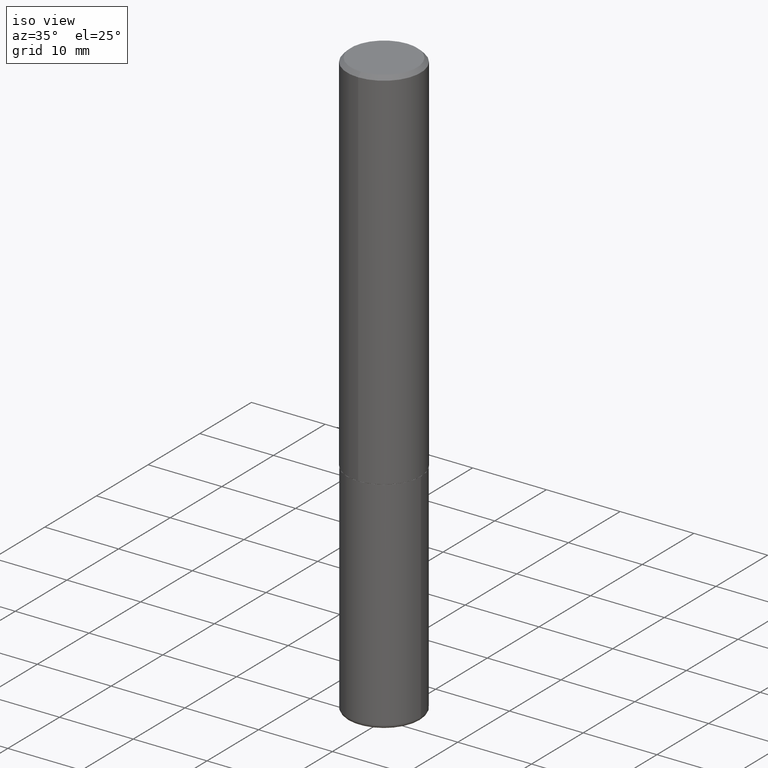
[diagram: clean part render]
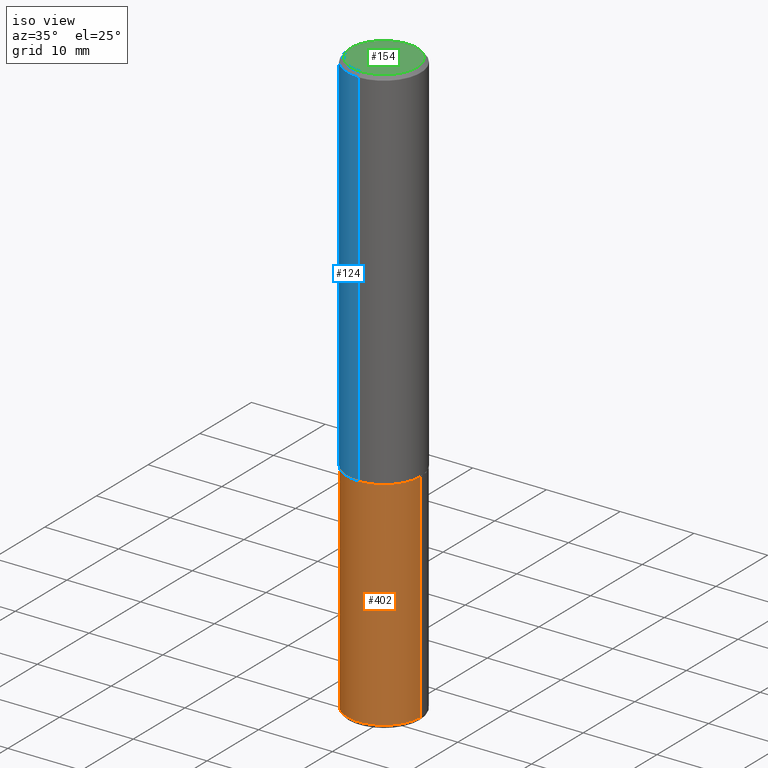
[diagram: same view with three faces highlighted in distinct colors, each labeled with its STEP entity id]
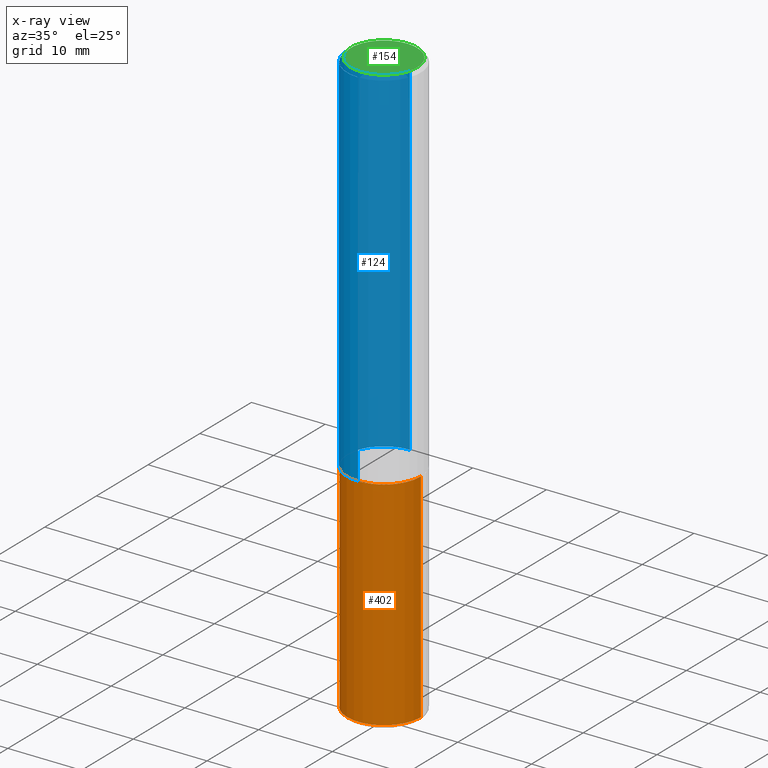
[diagram: x-ray of the same camera — body ghosted, the three highlighted faces saturated]
A machine part, iso view with three faces highlighted in distinct colors.
The next image is the same camera in x-ray (body ghosted, the three faces saturated) — at least one of them is partly hidden behind the body in this view.
Their STEP definitions:

[orange] entity #402 — the highlighted cylindrical surface (partial cylindrical patch) has radius 5 mm, axis along (-0, 0, 1).
#5 = CARTESIAN_POINT ( 'NONE',  ( 0.1968499999999999417, -1.230258364554770273E-14, -3.129900000000000571 ) ) ;
#29 = LINE ( 'NONE', #346, #117 ) ;
#32 = DIRECTION ( 'NONE',  ( 1.000000000000000000, -6.982962677686269866E-15, 0.000000000000000000 ) ) ;
#35 = LINE ( 'NONE', #417, #264 ) ;
#38 = CIRCLE ( 'NONE', #385, 0.1968500000000000250 ) ;
#53 = VERTEX_POINT ( 'NONE', #181 ) ;
#59 = DIRECTION ( 'NONE',  ( 1.000000000000000000, -6.982962677686267499E-15, 0.000000000000000000 ) ) ;
#63 = CARTESIAN_POINT ( 'NONE',  ( -0.1968500000000000250, -7.501780853635190206E-15, -1.968499999999999694 ) ) ;
#64 = CARTESIAN_POINT ( 'NONE',  ( 4.813905344975440714E-29, -6.872981015512730918E-15, -1.968499999999999694 ) ) ;
#72 = CARTESIAN_POINT ( 'NONE',  ( 0.000000000000000000, 0.000000000000000000, 0.000000000000000000 ) ) ;
#92 = ORIENTED_EDGE ( 'NONE', *, *, #227, .F. ) ;
#101 = EDGE_CURVE ( 'NONE', #334, #273, #29, .T. ) ;
#106 = EDGE_CURVE ( 'NONE', #179, #273, #38, .T. ) ;
#108 = ORIENTED_EDGE ( 'NONE', *, *, #101, .T. ) ;
#117 = VECTOR ( 'NONE', #160, 39.37007874015748143 ) ;
#133 = CARTESIAN_POINT ( 'NONE',  ( 0.1968500000000000250, -8.247577218615273316E-15, -1.968499999999999694 ) ) ;
#136 = DIRECTION ( 'NONE',  ( -2.445468806185136597E-29, 3.491481338843145583E-15, 1.000000000000000000 ) ) ;
#139 = CYLINDRICAL_SURFACE ( 'NONE', #281, 0.1968499999999999694 ) ;
#140 = ORIENTED_EDGE ( 'NONE', *, *, #106, .F. ) ;
#155 = CIRCLE ( 'NONE', #413, 0.1968499999999999694 ) ;
#160 = DIRECTION ( 'NONE',  ( -2.445468806185136877E-29, 3.491481338843145188E-15, 1.000000000000000000 ) ) ;
#163 = DIRECTION ( 'NONE',  ( -2.445468806185136877E-29, 3.491481338843145188E-15, 1.000000000000000000 ) ) ;
#174 = ORIENTED_EDGE ( 'NONE', *, *, #207, .T. ) ;
#179 = VERTEX_POINT ( 'NONE', #63 ) ;
#181 = CARTESIAN_POINT ( 'NONE',  ( -0.1968499999999999417, -9.529284067101404126E-15, -3.129900000000000571 ) ) ;
#207 = EDGE_CURVE ( 'NONE', #53, #334, #155, .T. ) ;
#227 = EDGE_CURVE ( 'NONE', #53, #179, #35, .T. ) ;
#237 = DIRECTION ( 'NONE',  ( -2.445468806185136597E-29, 3.491481338843145583E-15, 1.000000000000000000 ) ) ;
#264 = VECTOR ( 'NONE', #163, 39.37007874015748143 ) ;
#268 = DIRECTION ( 'NONE',  ( 1.000000000000000000, -6.982962677686266711E-15, 4.876176775795935793E-29 ) ) ;
#273 = VERTEX_POINT ( 'NONE', #133 ) ;
#281 = AXIS2_PLACEMENT_3D ( 'NONE', #72, #237, #268 ) ;
#288 = DIRECTION ( 'NONE',  ( -2.445468806185136597E-29, 3.491481338843145583E-15, 1.000000000000000000 ) ) ;
#298 = FACE_OUTER_BOUND ( 'NONE', #401, .T. ) ;
#321 = CARTESIAN_POINT ( 'NONE',  ( 7.654072816478859974E-29, -1.092798744244516270E-14, -3.129900000000000571 ) ) ;
#334 = VERTEX_POINT ( 'NONE', #5 ) ;
#346 = CARTESIAN_POINT ( 'NONE',  ( 0.1968499999999999694, -1.374596203102541411E-15, 9.598753983154298056E-30 ) ) ;
#385 = AXIS2_PLACEMENT_3D ( 'NONE', #64, #288, #59 ) ;
#401 = EDGE_LOOP ( 'NONE', ( #92, #174, #108, #140 ) ) ;
#402 = ADVANCED_FACE ( 'NONE', ( #298 ), #139, .T. ) ;
#413 = AXIS2_PLACEMENT_3D ( 'NONE', #321, #136, #32 ) ;
#417 = CARTESIAN_POINT ( 'NONE',  ( -0.1968499999999999694, 1.398703375343756999E-15, -9.682923725166782276E-30 ) ) ;

[blue] entity #124 — the highlighted cylindrical surface (partial cylindrical patch) has radius 5 mm, axis along (-0, 0, 1).
#26 = VERTEX_POINT ( 'NONE', #95 ) ;
#30 = CIRCLE ( 'NONE', #235, 0.1968500000000000527 ) ;
#37 = DIRECTION ( 'NONE',  ( -2.445268841296851437E-29, 3.491767699944464545E-15, 1.000000000000000000 ) ) ;
#46 = VERTEX_POINT ( 'NONE', #119 ) ;
#73 = CARTESIAN_POINT ( 'NONE',  ( 1.398703375343757985E-15, 0.1968500000000001360, -6.873544717340683232E-16 ) ) ;
#83 = VECTOR ( 'NONE', #236, 39.37007874015748143 ) ;
#91 = EDGE_CURVE ( 'NONE', #153, #26, #30, .T. ) ;
#94 = DIRECTION ( 'NONE',  ( -6.982962677686265133E-15, -1.000000000000000000, 3.491137977679279029E-15 ) ) ;
#95 = CARTESIAN_POINT ( 'NONE',  ( -1.350489030861325626E-15, -0.1968500000000001082, -0.01999999999999935510 ) ) ;
#98 = LINE ( 'NONE', #225, #83 ) ;
#119 = CARTESIAN_POINT ( 'NONE',  ( 1.398703375343782440E-15, 0.1968499999999933914, -1.967500000000000471 ) ) ;
#120 = CYLINDRICAL_SURFACE ( 'NONE', #342, 0.1968500000000001360 ) ;
#123 = DIRECTION ( 'NONE',  ( -2.445268841296851437E-29, 3.491767699944464545E-15, 1.000000000000000000 ) ) ;
#124 = ADVANCED_FACE ( 'NONE', ( #282 ), #120, .T. ) ;
#146 = VERTEX_POINT ( 'NONE', #275 ) ;
#153 = VERTEX_POINT ( 'NONE', #182 ) ;
#169 = LINE ( 'NONE', #73, #348 ) ;
#182 = CARTESIAN_POINT ( 'NONE',  ( 1.374596203102542200E-15, 0.1968499999999999694, -0.02000000000000072900 ) ) ;
#188 = ORIENTED_EDGE ( 'NONE', *, *, #258, .T. ) ;
#190 = DIRECTION ( 'NONE',  ( -2.445268841296851437E-29, 3.491767699944464545E-15, 1.000000000000000000 ) ) ;
#225 = CARTESIAN_POINT ( 'NONE',  ( -1.374596203102542397E-15, -0.1968500000000001360, 6.873544717340683232E-16 ) ) ;
#235 = AXIS2_PLACEMENT_3D ( 'NONE', #380, #190, #94 ) ;
#236 = DIRECTION ( 'NONE',  ( -2.445268841296851437E-29, 3.491767699944464940E-15, 1.000000000000000000 ) ) ;
#252 = DIRECTION ( 'NONE',  ( -6.982962677686265922E-15, -1.000000000000000000, 3.491767699944464545E-15 ) ) ;
#258 = EDGE_CURVE ( 'NONE', #46, #146, #307, .T. ) ;
#275 = CARTESIAN_POINT ( 'NONE',  ( -1.374596203102495065E-15, -0.1968500000000071026, -1.967499999999998916 ) ) ;
#282 = FACE_OUTER_BOUND ( 'NONE', #405, .T. ) ;
#284 = CARTESIAN_POINT ( 'NONE',  ( 0.000000000000000000, 0.000000000000000000, 0.000000000000000000 ) ) ;
#291 = CARTESIAN_POINT ( 'NONE',  ( 4.811066445251554069E-29, -6.870052949640732965E-15, -1.967499999999999805 ) ) ;
#302 = ORIENTED_EDGE ( 'NONE', *, *, #340, .F. ) ;
#307 = CIRCLE ( 'NONE', #354, 0.1968500000000002470 ) ;
#331 = EDGE_CURVE ( 'NONE', #146, #26, #98, .T. ) ;
#340 = EDGE_CURVE ( 'NONE', #46, #153, #169, .T. ) ;
#342 = AXIS2_PLACEMENT_3D ( 'NONE', #284, #123, #252 ) ;
#348 = VECTOR ( 'NONE', #355, 39.37007874015748143 ) ;
#354 = AXIS2_PLACEMENT_3D ( 'NONE', #291, #37, #387 ) ;
#355 = DIRECTION ( 'NONE',  ( -2.445268841296851437E-29, 3.491767699944464940E-15, 1.000000000000000000 ) ) ;
#380 = CARTESIAN_POINT ( 'NONE',  ( 4.890537682593712927E-31, -6.983535399888942699E-17, -0.02000000000000004205 ) ) ;
#387 = DIRECTION ( 'NONE',  ( -6.982962677686265922E-15, -1.000000000000000000, 4.163344669033670112E-15 ) ) ;
#396 = ORIENTED_EDGE ( 'NONE', *, *, #331, .T. ) ;
#403 = ORIENTED_EDGE ( 'NONE', *, *, #91, .F. ) ;
#405 = EDGE_LOOP ( 'NONE', ( #302, #188, #396, #403 ) ) ;

[green] entity #154 — the highlighted planar face has unit normal (0, -0, -1).
#8 = DIRECTION ( 'NONE',  ( -2.445268841296851437E-29, 3.491767699944464545E-15, 1.000000000000000000 ) ) ;
#61 = DIRECTION ( 'NONE',  ( 6.982962677686265922E-15, 1.000000000000000000, -3.491767699944464940E-15 ) ) ;
#69 = DIRECTION ( 'NONE',  ( 2.445268841296850876E-29, -3.491767699944464940E-15, -1.000000000000000000 ) ) ;
#100 = CARTESIAN_POINT ( 'NONE',  ( -1.281884050883609900E-15, -0.1768499999999998407, 8.395324101811677409E-16 ) ) ;
#127 = AXIS2_PLACEMENT_3D ( 'NONE', #244, #8, #336 ) ;
#135 = AXIS2_PLACEMENT_3D ( 'NONE', #191, #69, #61 ) ;
#150 = AXIS2_PLACEMENT_3D ( 'NONE', #344, #254, #383 ) ;
#152 = EDGE_CURVE ( 'NONE', #312, #278, #316, .T. ) ;
#154 = ADVANCED_FACE ( 'NONE', ( #308 ), #351, .F. ) ;
#167 = EDGE_CURVE ( 'NONE', #278, #312, #376, .T. ) ;
#191 = CARTESIAN_POINT ( 'NONE',  ( 1.234936949548815012E-15, 0.1768499999999998407, -5.065124715121833152E-16 ) ) ;
#204 = ORIENTED_EDGE ( 'NONE', *, *, #167, .T. ) ;
#244 = CARTESIAN_POINT ( 'NONE',  ( -5.428821863719041386E-45, 7.752188435212310874E-31, 2.220132924459896583E-16 ) ) ;
#254 = DIRECTION ( 'NONE',  ( -2.445268841296851437E-29, 3.491767699944464545E-15, 1.000000000000000000 ) ) ;
#260 = CARTESIAN_POINT ( 'NONE',  ( 1.304766576325678705E-15, 0.1768499999999998407, -3.955058252891884244E-16 ) ) ;
#278 = VERTEX_POINT ( 'NONE', #100 ) ;
#308 = FACE_OUTER_BOUND ( 'NONE', #398, .T. ) ;
#312 = VERTEX_POINT ( 'NONE', #260 ) ;
#316 = CIRCLE ( 'NONE', #127, 0.1768499999999998407 ) ;
#336 = DIRECTION ( 'NONE',  ( -6.982962677686265922E-15, -1.000000000000000000, 3.491767699944464940E-15 ) ) ;
#344 = CARTESIAN_POINT ( 'NONE',  ( -5.428821863719041386E-45, 7.752188435212310874E-31, 2.220132924459896583E-16 ) ) ;
#351 = PLANE ( 'NONE',  #135 ) ;
#367 = ORIENTED_EDGE ( 'NONE', *, *, #152, .T. ) ;
#376 = CIRCLE ( 'NONE', #150, 0.1768499999999998407 ) ;
#383 = DIRECTION ( 'NONE',  ( -6.982962677686265922E-15, -1.000000000000000000, 3.491767699944464940E-15 ) ) ;
#398 = EDGE_LOOP ( 'NONE', ( #367, #204 ) ) ;